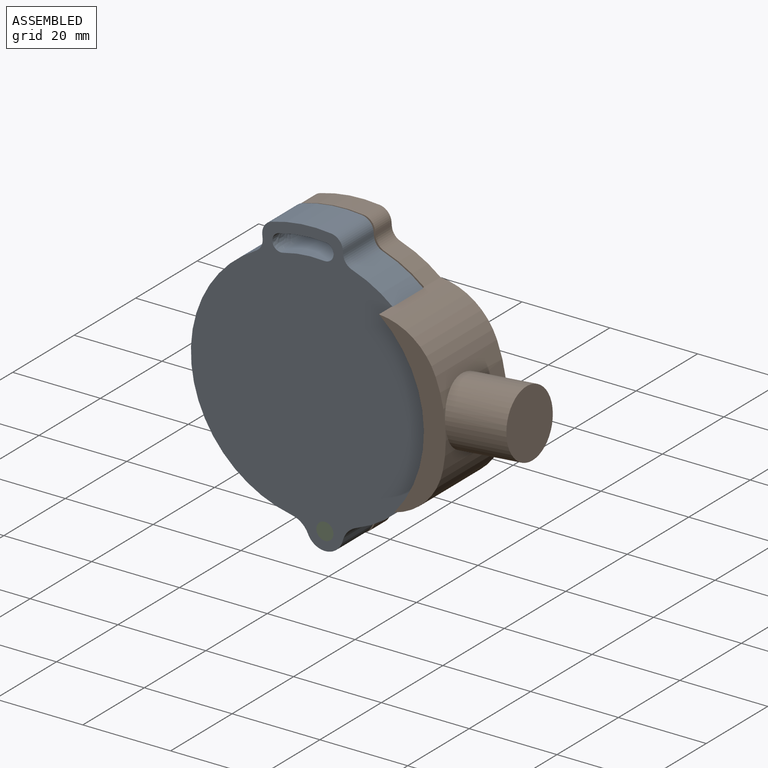
[diagram: assembled view]
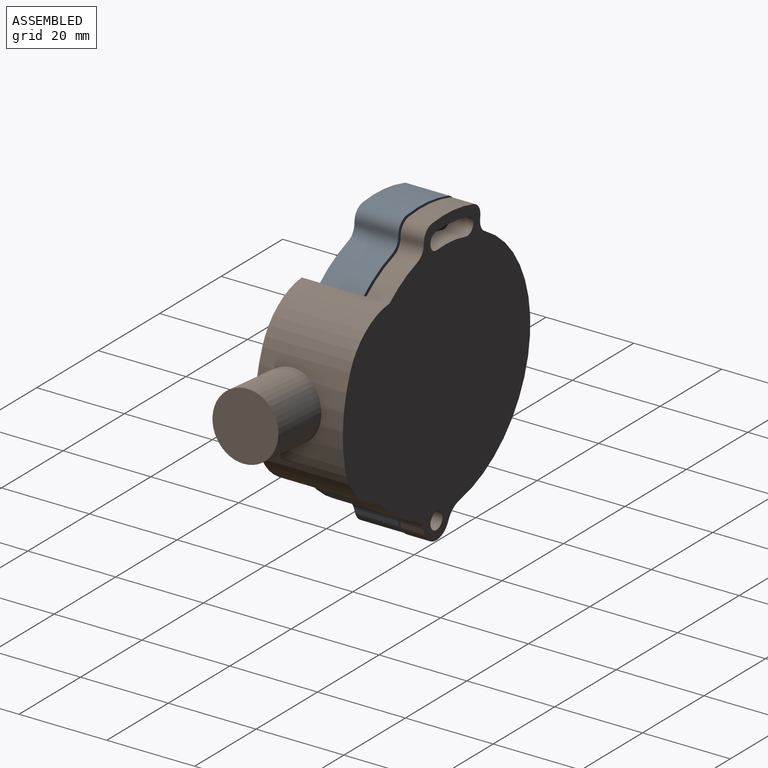
[diagram: assembled view, second angle]
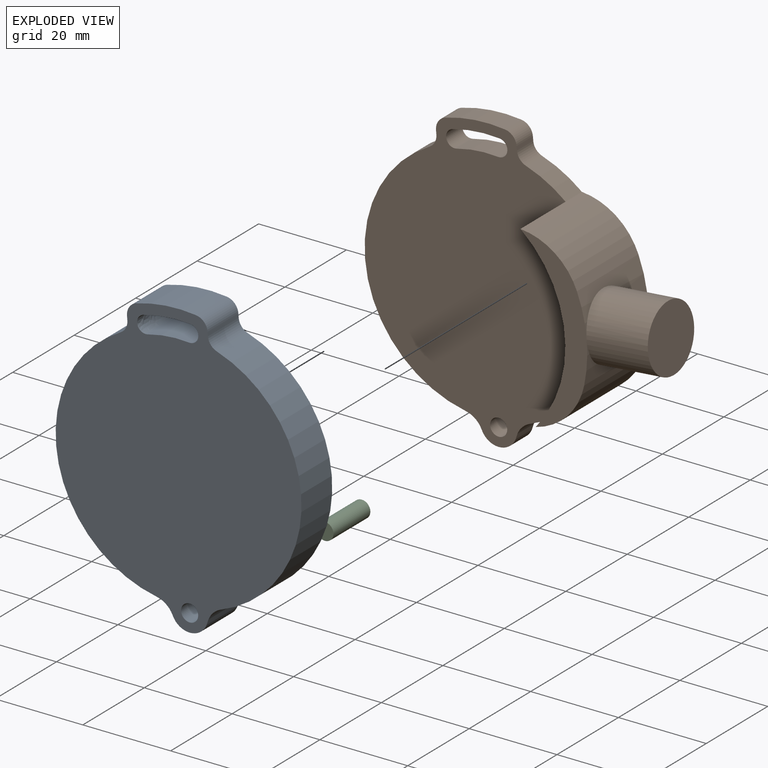
[diagram: exploded view]
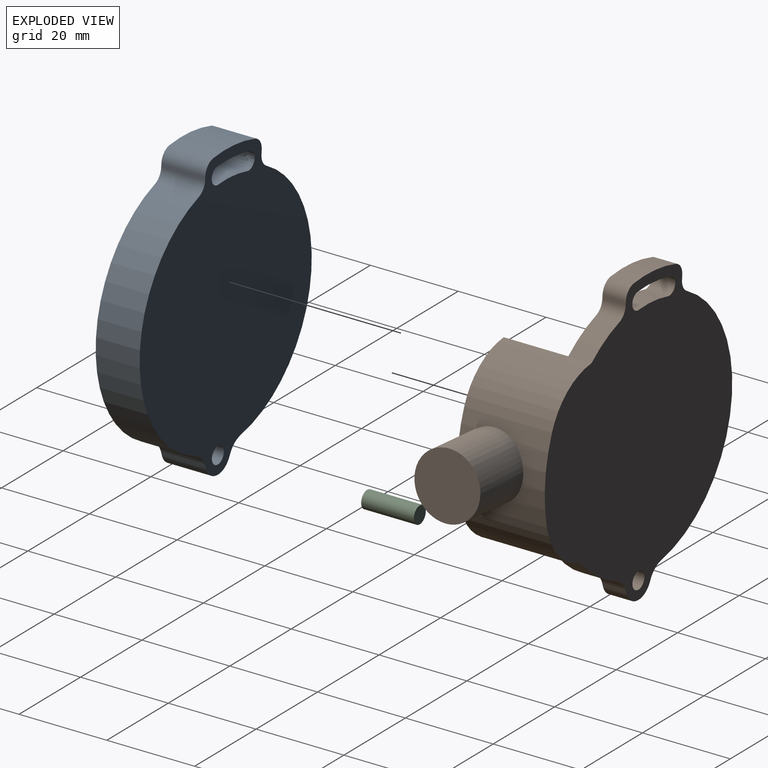
[diagram: exploded view, second angle]
ASSEMBLY  parts=3 mates=2
PART A: 19 faces, bbox 56x10x66.1 mm
  f0: plane 66.1x56mm, normal (0,-1,0), area 2532.7mm2, adj f2,f3,f4,f5,f6,f7,f8,f9
  f1: plane 66.1x56mm, normal (0,1,0), area 2532.7mm2, adj f2,f3,f4,f5,f6,f7,f8,f9
  f2: cylinder r=28mm len=52.74mm, axis (0,1,0), area 691.5mm2, adj f0,f1,f9,f13
  f3: cylinder r=4.2mm len=10mm, axis (0,1,0), area 104.2mm2, adj f0,f1,f8,f9
  f4: cylinder r=28mm len=52.74mm, axis (0,1,0), area 691.5mm2, adj f0,f1,f8,f10
  f5: plane 10x0.91mm, normal (1,0,0), area 9.1mm2, adj f0,f1,f10,f11
  f6: cylinder r=33.05mm len=13.67mm, axis (0,1,0), area 137.7mm2, adj f0,f1,f11,f12
  f7: plane 10x0.91mm, normal (-1,0,0), area 9.1mm2, adj f0,f1,f12,f13
  f8: cylinder r=5mm len=10mm, axis (0,-1,0), area 48.7mm2, adj f0,f1,f3,f4
  f9: cylinder r=5mm len=10mm, axis (0,-1,0), area 48.7mm2, adj f0,f1,f2,f3
  f10: cylinder r=3mm len=10mm, axis (0,1,0), area 35mm2, adj f0,f1,f4,f5
  f11: cylinder r=3mm len=10mm, axis (0,1,0), area 40.9mm2, adj f0,f1,f5,f6
  f12: cylinder r=3mm len=10mm, axis (0,1,0), area 40.9mm2, adj f0,f1,f6,f7
  f13: cylinder r=3mm len=10mm, axis (0,1,0), area 35mm2, adj f0,f1,f2,f7
  f14: cylinder r=1.95mm len=10mm, axis (0,-1,0), area 61.3mm2, adj f0,f1,f15,f17
  f15: cylinder r=30.75mm len=10.78mm, axis (0,-1,0), area 108.4mm2, adj f0,f1,f14,f16
  f16: extruded ~10x3.87mm, area 61.3mm2, adj f0,f1,f15,f17
  f17: cylinder r=26.85mm len=10mm, axis (0,-1,0), area 94.7mm2, adj f0,f1,f14,f16
  f18: cylinder r=1.95mm len=10mm, axis (0,-1,0), area 122.5mm2, adj f0,f1
PART B: 28 faces, bbox 75x20x66.1 mm
  f0: cylinder r=28mm len=8.56mm, axis (0,1,0), area 54.9mm2, adj f1,f2,f3,f4
  f1: plane 66.1x56mm, normal (0,-1,0), area 2532.7mm2, adj f0,f4,f5,f6,f7,f8,f9,f10
  f2: cylinder r=15mm len=20mm, axis (0,-1,0), area 336.2mm2, adj f0,f3,f12,f22,f23
  f3: plane 66.1x61mm, normal (0,1,0), area 2722.5mm2, adj f0,f2,f4,f5,f6,f7,f8,f9
  f4: cylinder r=3mm len=5.3mm, axis (0,1,0), area 18.5mm2, adj f0,f1,f3,f13
  f5: cylinder r=1.95mm len=5.3mm, axis (0,1,0), area 32.5mm2, adj f1,f3,f6,f8
  f6: cylinder r=30.75mm len=10.78mm, axis (0,1,0), area 57.5mm2, adj f1,f3,f5,f7
  f7: cylinder r=1.95mm len=5.3mm, axis (0,1,0), area 32.5mm2, adj f1,f3,f6,f8
  f8: cylinder r=26.85mm len=9.42mm, axis (0,1,0), area 50.2mm2, adj f1,f3,f5,f7
  f9: cylinder r=1.95mm len=5.3mm, axis (0,1,0), area 64.9mm2, adj f1,f3
  f10: cylinder r=5mm len=5.3mm, axis (0,-1,0), area 25.8mm2, adj f1,f3,f11,f21
  f11: cylinder r=28mm len=12.21mm, axis (0,1,0), area 75.4mm2, adj f1,f3,f10,f24
  f12: cylinder r=28mm len=40mm, axis (0,-1,0), area 654.9mm2, adj f1,f2,f22,f24
  f13: plane 5.3x0.91mm, normal (1,0,0), area 4.8mm2, adj f1,f3,f4,f14
  f14: cylinder r=3mm len=5.3mm, axis (0,1,0), area 21.7mm2, adj f1,f3,f13,f15
  f15: cylinder r=33.05mm len=13.67mm, axis (0,1,0), area 73mm2, adj f1,f3,f14,f16
  f16: cylinder r=3mm len=5.3mm, axis (0,1,0), area 21.7mm2, adj f1,f3,f15,f17
  f17: plane 5.3x0.91mm, normal (-1,0,0), area 4.8mm2, adj f1,f3,f16,f18
  f18: cylinder r=3mm len=5.3mm, axis (0,1,0), area 18.5mm2, adj f1,f3,f17,f19
  f19: cylinder r=28mm len=52.74mm, axis (0,1,0), area 366.5mm2, adj f1,f3,f18,f20
  f20: cylinder r=5mm len=5.3mm, axis (0,-1,0), area 25.8mm2, adj f1,f3,f19,f21
  f21: cylinder r=4.2mm len=7.95mm, axis (0,1,0), area 55.2mm2, adj f1,f3,f10,f20
  f22: plane 40x13.4mm, normal (0,-1,0), area 189.8mm2, adj f2,f12,f23,f24
  f23: cylinder r=33mm len=20mm, axis (0,1,0), area 385.8mm2, adj f2,f3,f22,f24
  f24: cylinder r=15mm len=20mm, axis (0,-1,0), area 336.2mm2, adj f3,f11,f12,f22,f23
  f25: cylinder r=33mm len=15.01mm, axis (0,1,0), area 177.9mm2, adj f26
  f26: cylinder r=7.5mm len=15mm, axis (-1,0,0), area 680.1mm2, adj f25,f27
  f27: plane 15x15mm, normal (1,0,0), area 176.7mm2, adj f26
PART C: 3 faces, bbox 3.9x12x3.9 mm
  f0: cylinder r=1.95mm len=12mm, axis (0,1,0), area 147mm2, adj f1,f2
  f1: plane 3.9x3.9mm, normal (0,-1,0), area 11.9mm2, adj f0
  f2: plane 3.9x3.9mm, normal (0,1,0), area 11.9mm2, adj f0
PLACE A rot(axis=(0,-1,0),5deg) t=(45.12,35.83,88.22)mm
PLACE B rot(axis=(0,-1,0),5deg) t=(52.54,41.63,3.39)mm
PLACE C rot(axis=(0,-1,0),5deg) t=(118.55,37.83,20.41)mm
MATE cylindrical A.f18 <-> C.f0  axis (0,-1,0) through (55.06,25.83,-25.35)mm
MATE slider B.f21 <-> C.f0  axis (0,-1,0) through (55.06,36.33,-25.35)mm
